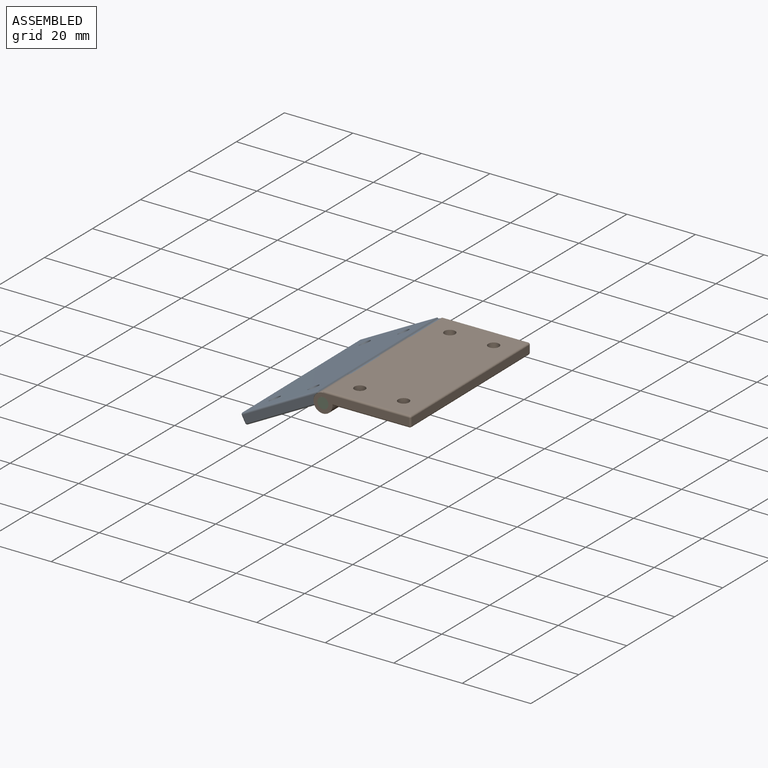
[diagram: assembled view]
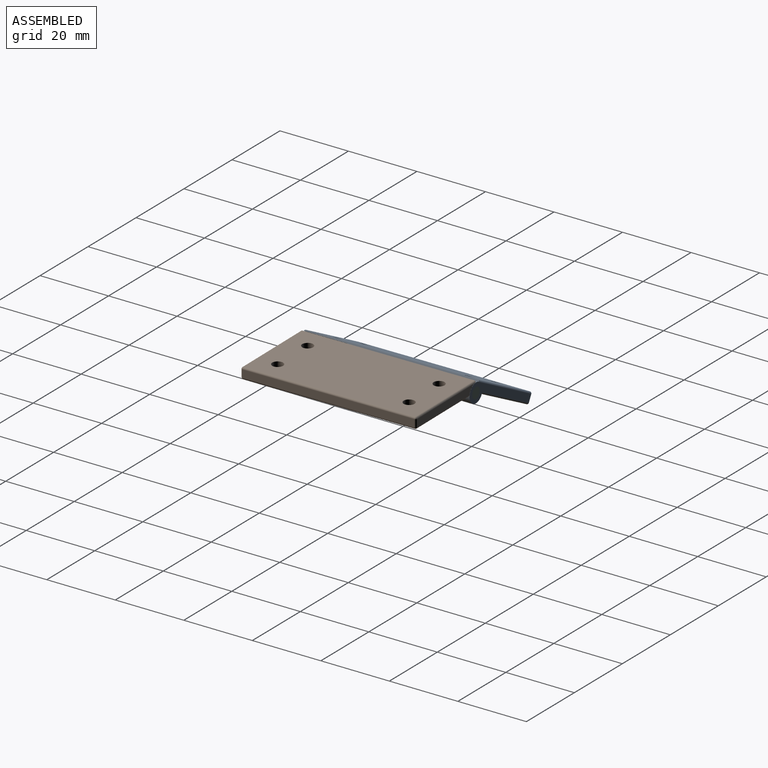
[diagram: assembled view, second angle]
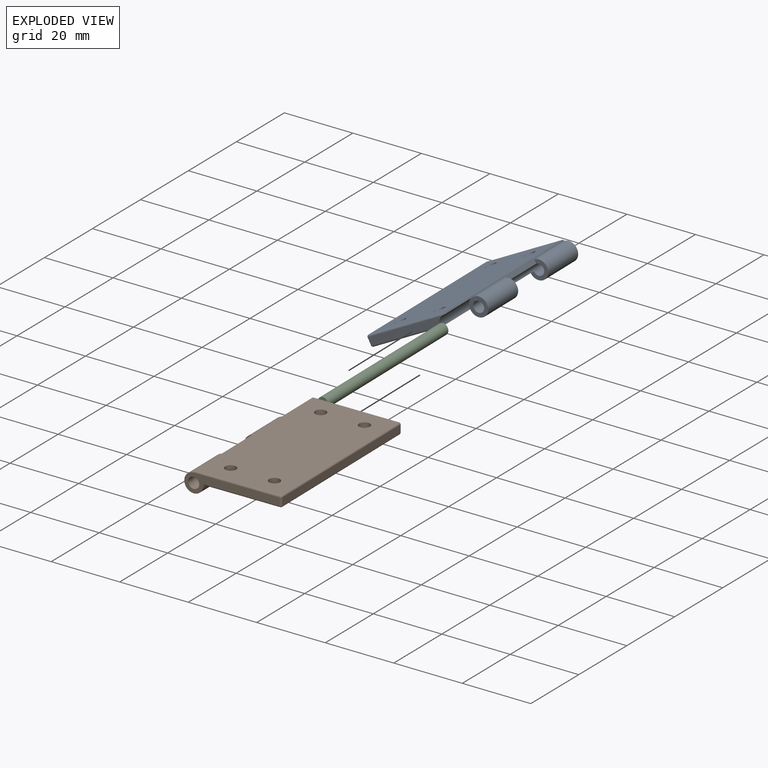
[diagram: exploded view]
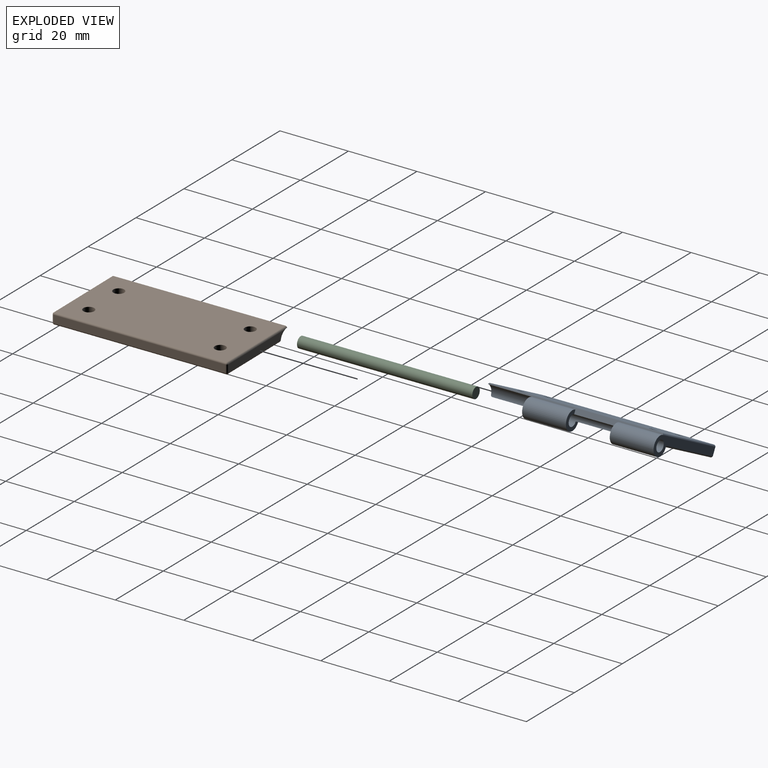
[diagram: exploded view, second angle]
ASSEMBLY  parts=3 mates=2
PART A: 34 faces, bbox 28.1x50.8x5.9 mm
  f0: cylinder r=1.59mm len=38.19mm, axis (0,-1,0), area 285.2mm2, adj f1,f2,f4,f7,f10,f11,f33
  f1: plane 50.78x1.59mm, normal (1,0,0), area 35.8mm2, adj f0,f6,f7,f8,f9,f10,f11,f20
  f2: plane 49.78x23.3mm, normal (0,0,-1), area 990.1mm2, adj f0,f7,f8,f9,f10,f11,f13,f15
  f3: plane 24.06x2.16mm, normal (0,-1,0), area 49.1mm2, adj f20,f21,f22,f32
  f4: plane 27.64x5.42mm, normal (0,1,0), area 65mm2, adj f0,f8,f25,f28,f31
  f5: plane 49.78x2.16mm, normal (-1,0,0), area 107.5mm2, adj f21,f26,f27,f31
  f6: plane 49.78x24.89mm, normal (0,0,1), area 1207.6mm2, adj f1,f12,f14,f16,f18,f20,f25,f26
  f7: plane 5.5x5.5mm, normal (0,-1,0), area 11.9mm2, adj f0,f1,f2,f8
  f8: cylinder r=2.75mm len=12.7mm, axis (0,1,0), area 164.6mm2, adj f1,f2,f4,f7,f25,f28
  f9: cylinder r=2.75mm len=12.7mm, axis (0,1,0), area 164.5mm2, adj f1,f2,f10,f11
  f10: plane 5.5x5.5mm, normal (0,1,0), area 11.9mm2, adj f0,f1,f2,f9
  f11: plane 5.5x5.5mm, normal (0,-1,0), area 11.9mm2, adj f0,f1,f2,f9
  f12: cylinder r=1.59mm len=3.18mm, axis (0,0,-1), area 15.8mm2, adj f6,f13
  f13: cone r=1.59mm half-angle=45deg, axis (0,0,-1), area 33.6mm2, adj f2,f12
  f14: cylinder r=1.59mm len=3.18mm, axis (0,0,-1), area 15.8mm2, adj f6,f15
  f15: cone r=1.59mm half-angle=45deg, axis (0,0,-1), area 33.6mm2, adj f2,f14
  f16: cylinder r=1.59mm len=3.18mm, axis (0,0,-1), area 15.8mm2, adj f6,f17
  f17: cone r=1.59mm half-angle=45deg, axis (0,0,-1), area 33.6mm2, adj f2,f16
  f18: cylinder r=1.59mm len=3.18mm, axis (0,0,-1), area 15.8mm2, adj f6,f19
  f19: cone r=1.59mm half-angle=45deg, axis (0,0,-1), area 33.6mm2, adj f2,f18
  f20: cylinder r=0.51mm len=24.89mm, axis (-1,0,0), area 19.8mm2, adj f1,f3,f6,f23,f32
  f21: cylinder r=0.51mm len=2.16mm, axis (0,0,-1), area 1.7mm2, adj f3,f5,f23,f24
  f22: cylinder r=0.51mm len=22.15mm, axis (1,0,0), area 17.7mm2, adj f2,f3,f24,f32
  f23: sphere r=0.51mm, area 0.4mm2, adj f20,f21,f26
  f24: sphere r=0.51mm, area 0.4mm2, adj f21,f22,f27
  f25: cylinder r=0.51mm len=25.56mm, axis (1,0,0), area 19.9mm2, adj f1,f4,f6,f8,f29
  f26: cylinder r=0.51mm len=49.78mm, axis (0,1,0), area 39.7mm2, adj f5,f6,f23,f29
  f27: cylinder r=0.51mm len=49.78mm, axis (0,-1,0), area 39.7mm2, adj f2,f5,f24,f30
  f28: cylinder r=0.51mm len=22.19mm, axis (-1,0,0), area 17.7mm2, adj f2,f4,f8,f30
  f29: sphere r=0.51mm, area 0.4mm2, adj f25,f26,f31
  f30: sphere r=0.51mm, area 0.4mm2, adj f27,f28,f31
  f31: cylinder r=0.51mm len=2.16mm, axis (0,0,1), area 1.7mm2, adj f4,f5,f29,f30
  f32: cylinder r=2.79mm len=12.61mm, axis (0,-1,0), area 55.2mm2, adj f1,f2,f3,f20,f22,f33
  f33: plane 2.79x2.79mm, normal (0,-1,0), area 4.1mm2, adj f0,f1,f2,f32
PART B: same geometry as A
PART C: 3 faces, bbox 3.2x50.8x3.2 mm
  f0: plane 3.18x3.18mm, normal (0,-1,0), area 7.9mm2, adj f1
  f1: cylinder r=1.59mm len=50.8mm, axis (0,1,0), area 506.7mm2, adj f0,f2
  f2: plane 3.18x3.18mm, normal (0,1,0), area 7.9mm2, adj f1
PLACE A rot(axis=(0.01,-1,0.02),27.8deg) t=(-29.67,-3.29,38.5)mm
PLACE B rot(axis=(0,0,-1),179.4deg) t=(-185.44,-9.34,0)mm fixed
PLACE C rot(axis=(0.01,-1,0.03),21.6deg) t=(-0.02,0.5,40.73)mm
MATE revolute C.f1 <-> A.f0  axis (-0.01,1,0) through (-103.07,19.14,0)mm
MATE revolute C.f1 <-> B.f0  axis (0.01,-1,0) through (-102.53,-31.66,0)mm
